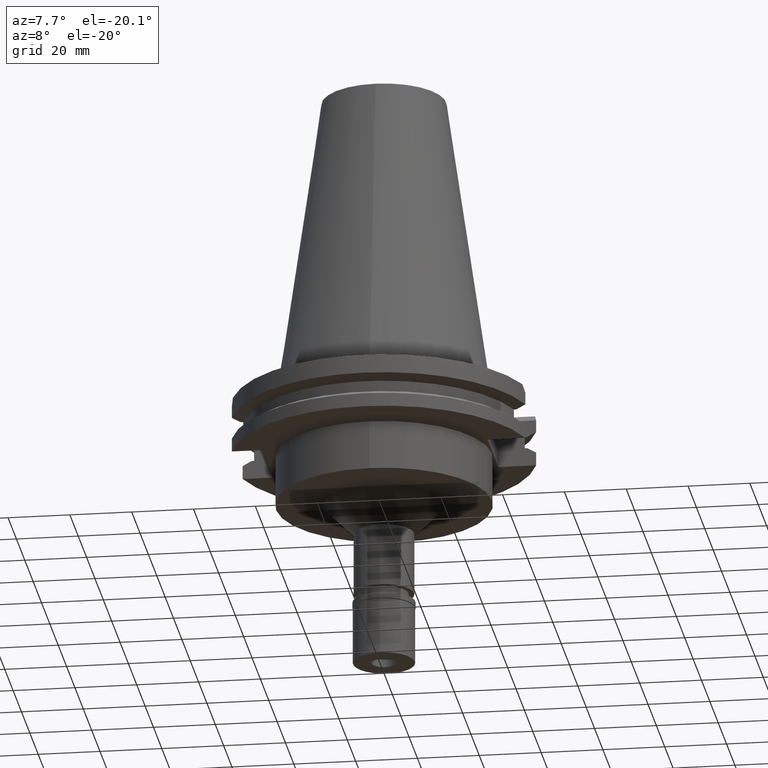
[diagram: clean part render]
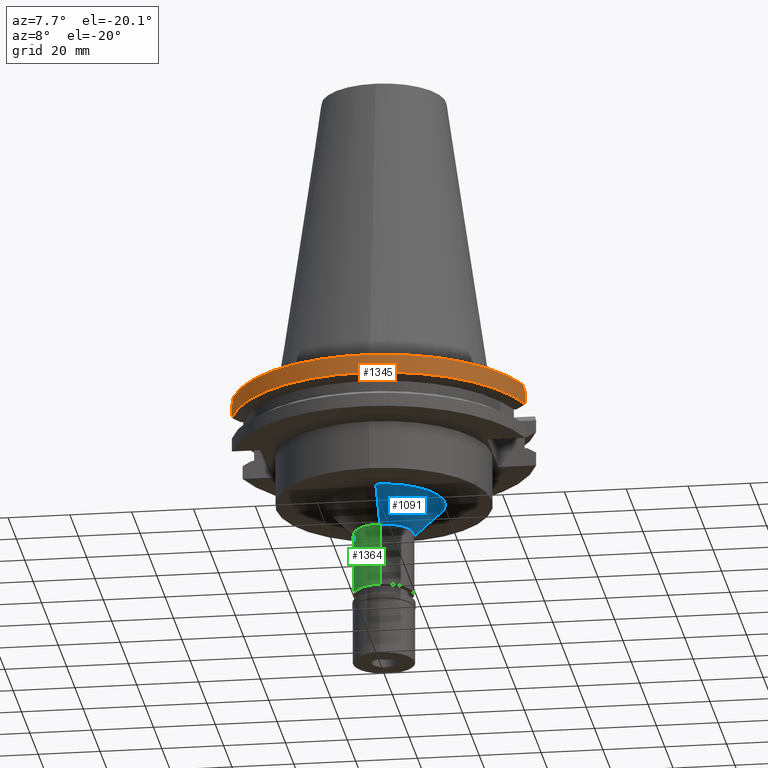
[diagram: same view with three faces highlighted in distinct colors, each labeled with its STEP entity id]
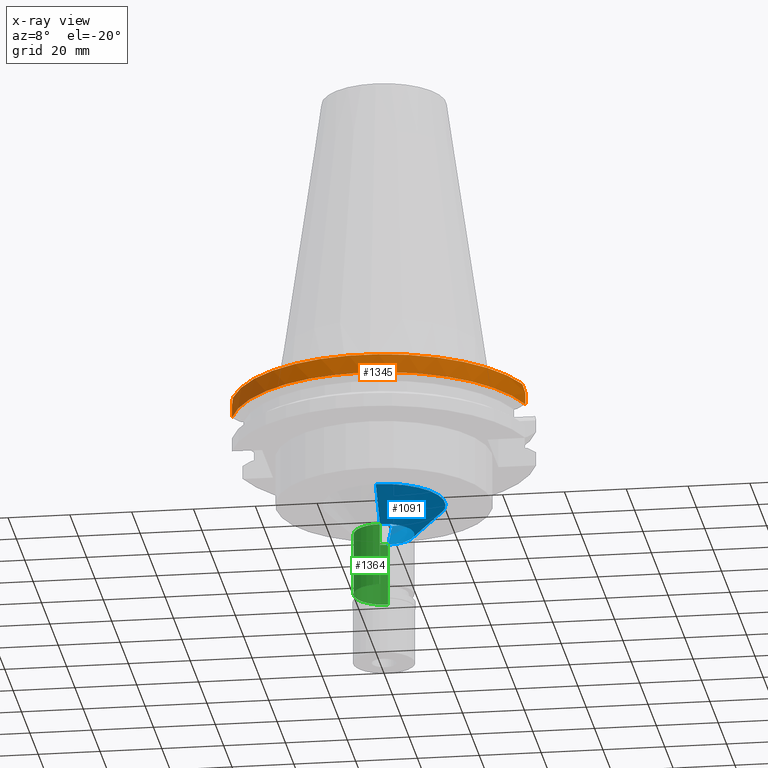
[diagram: x-ray of the same camera — body ghosted, the three highlighted faces saturated]
A machine part, auxiliary view with three faces highlighted in distinct colors.
The next image is the same camera in x-ray (body ghosted, the three faces saturated) — at least one of them is partly hidden behind the body in this view.
Their STEP definitions:

[orange] entity #1345 — the highlighted cylindrical surface (partial cylindrical patch) has radius 49.2125 mm, axis along (0, 0, -1).
#63 = EDGE_LOOP ( 'NONE', ( #402, #559, #3155, #2840, #1658, #2189 ) ) ;
#151 = CARTESIAN_POINT ( 'NONE',  ( 47.47671146204000081, -12.95500000000000007, -3.700000000000000178 ) ) ;
#182 = CIRCLE ( 'NONE', #2048, 49.21249999999999858 ) ;
#186 = CARTESIAN_POINT ( 'NONE',  ( 0.0000000000000000000, 2.580636967502999935E-14, 110.7250000000000085 ) ) ;
#193 = EDGE_CURVE ( 'NONE', #545, #530, #3212, .T. ) ;
#382 = EDGE_CURVE ( 'NONE', #1837, #530, #2187, .T. ) ;
#402 = ORIENTED_EDGE ( 'NONE', *, *, #767, .F. ) ;
#417 = CARTESIAN_POINT ( 'NONE',  ( 0.0000000000000000000, 1.121722380078999823E-14, -7.601333230925999551 ) ) ;
#475 = VERTEX_POINT ( 'NONE', #2460 ) ;
#530 = VERTEX_POINT ( 'NONE', #3280 ) ;
#545 = VERTEX_POINT ( 'NONE', #3060 ) ;
#559 = ORIENTED_EDGE ( 'NONE', *, *, #193, .T. ) ;
#572 = CARTESIAN_POINT ( 'NONE',  ( 47.47671146204000081, -12.95500000000000007, -3.700000000000000178 ) ) ;
#749 = CARTESIAN_POINT ( 'NONE',  ( -47.27588310256999904, -13.69098379592999848, -2.964016204073000260 ) ) ;
#767 = EDGE_CURVE ( 'NONE', #545, #475, #1583, .T. ) ;
#780 = DIRECTION ( 'NONE',  ( -0.9647287063660957562, -0.2632461264922989486, 0.0000000000000000000 ) ) ;
#1103 = VECTOR ( 'NONE', #2940, 1000.000000000000000 ) ;
#1115 = CARTESIAN_POINT ( 'NONE',  ( 47.47671146204000081, -12.95500000000000007, -3.700000000000000178 ) ) ;
#1284 = CARTESIAN_POINT ( 'NONE',  ( -47.47671146204000081, -12.95500000000000007, -3.699999999999000089 ) ) ;
#1301 = CARTESIAN_POINT ( 'NONE',  ( 47.05739607796999735, -14.42433483211999956, -2.230665167879999800 ) ) ;
#1345 = ADVANCED_FACE ( 'NONE', ( #2975 ), #1941, .T. ) ;
#1383 = CARTESIAN_POINT ( 'NONE',  ( 46.82089417396999664, -15.15499999999999936, -1.500000000000000000 ) ) ;
#1413 = B_SPLINE_CURVE_WITH_KNOTS ( 'NONE', 3,
 ( #1284, #749, #1748, #2533 ),
 .UNSPECIFIED., .F., .F.,
 ( 4, 4 ),
 ( 0.0000000000000000000, 1.000000000000000000 ),
 .UNSPECIFIED. ) ;
#1467 = DIRECTION ( 'NONE',  ( 0.0000000000000000000, -1.000000000000000000, 0.0000000000000000000 ) ) ;
#1583 = LINE ( 'NONE', #2401, #1795 ) ;
#1658 = ORIENTED_EDGE ( 'NONE', *, *, #2801, .T. ) ;
#1748 = CARTESIAN_POINT ( 'NONE',  ( -47.05739607796999735, -14.42433483211999956, -2.230665167879999800 ) ) ;
#1795 = VECTOR ( 'NONE', #3170, 1000.000000000000000 ) ;
#1837 = VERTEX_POINT ( 'NONE', #1115 ) ;
#1904 = CARTESIAN_POINT ( 'NONE',  ( 0.0000000000000000000, 2.580636967502999935E-14, -1.500000000000000000 ) ) ;
#1941 = CYLINDRICAL_SURFACE ( 'NONE', #2018, 49.21249999999999858 ) ;
#2018 = AXIS2_PLACEMENT_3D ( 'NONE', #186, #2710, #1467 ) ;
#2048 = AXIS2_PLACEMENT_3D ( 'NONE', #1904, #2082, #2373 ) ;
#2082 = DIRECTION ( 'NONE',  ( 0.0000000000000000000, 0.0000000000000000000, -1.000000000000000000 ) ) ;
#2104 = EDGE_CURVE ( 'NONE', #475, #2502, #1413, .T. ) ;
#2173 = CARTESIAN_POINT ( 'NONE',  ( -46.82089417396999664, -15.15499999999999936, -1.500000000000000000 ) ) ;
#2182 = AXIS2_PLACEMENT_3D ( 'NONE', #417, #2579, #780 ) ;
#2187 = LINE ( 'NONE', #151, #1103 ) ;
#2189 = ORIENTED_EDGE ( 'NONE', *, *, #2104, .F. ) ;
#2322 = EDGE_CURVE ( 'NONE', #2441, #1837, #3221, .T. ) ;
#2373 = DIRECTION ( 'NONE',  ( 0.0000000000000000000, -1.000000000000000000, 0.0000000000000000000 ) ) ;
#2384 = CARTESIAN_POINT ( 'NONE',  ( 47.27588310256999904, -13.69098379592999848, -2.964016204073000260 ) ) ;
#2401 = CARTESIAN_POINT ( 'NONE',  ( -47.47671146204000081, -12.95500000000000007, -7.601333230924999462 ) ) ;
#2441 = VERTEX_POINT ( 'NONE', #1383 ) ;
#2460 = CARTESIAN_POINT ( 'NONE',  ( -47.47671146204000081, -12.95500000000000007, -3.699999999999000089 ) ) ;
#2502 = VERTEX_POINT ( 'NONE', #2173 ) ;
#2533 = CARTESIAN_POINT ( 'NONE',  ( -46.82089417396999664, -15.15499999999999936, -1.500000000000000000 ) ) ;
#2579 = DIRECTION ( 'NONE',  ( 0.0000000000000000000, 0.0000000000000000000, 1.000000000000000000 ) ) ;
#2710 = DIRECTION ( 'NONE',  ( 0.0000000000000000000, 0.0000000000000000000, -1.000000000000000000 ) ) ;
#2801 = EDGE_CURVE ( 'NONE', #2441, #2502, #182, .T. ) ;
#2840 = ORIENTED_EDGE ( 'NONE', *, *, #2322, .F. ) ;
#2909 = CARTESIAN_POINT ( 'NONE',  ( 46.82089417396999664, -15.15499999999999936, -1.500000000000000000 ) ) ;
#2940 = DIRECTION ( 'NONE',  ( 2.622645846769000281E-13, -3.323839354412000068E-14, -1.000000000000000000 ) ) ;
#2975 = FACE_OUTER_BOUND ( 'NONE', #63, .T. ) ;
#3060 = CARTESIAN_POINT ( 'NONE',  ( -47.47671146204000081, -12.95500000000000007, -7.601333230924999462 ) ) ;
#3155 = ORIENTED_EDGE ( 'NONE', *, *, #382, .F. ) ;
#3170 = DIRECTION ( 'NONE',  ( 2.640858665149000022E-13, 3.369371400362999696E-14, 1.000000000000000000 ) ) ;
#3212 = CIRCLE ( 'NONE', #2182, 49.21250000000001279 ) ;
#3221 = B_SPLINE_CURVE_WITH_KNOTS ( 'NONE', 3,
 ( #2909, #1301, #2384, #572 ),
 .UNSPECIFIED., .F., .F.,
 ( 4, 4 ),
 ( 0.0000000000000000000, 1.000000000000000000 ),
 .UNSPECIFIED. ) ;
#3280 = CARTESIAN_POINT ( 'NONE',  ( 47.47671146204000081, -12.95500000000000007, -7.601333230924999462 ) ) ;

[blue] entity #1091 — the highlighted conical surface has half-angle 45 deg.
#30 = AXIS2_PLACEMENT_3D ( 'NONE', #1934, #1168, #899 ) ;
#64 = CIRCLE ( 'NONE', #3126, 19.75000000000000000 ) ;
#84 = LINE ( 'NONE', #2093, #3108 ) ;
#359 = VERTEX_POINT ( 'NONE', #2424 ) ;
#396 = ORIENTED_EDGE ( 'NONE', *, *, #1515, .T. ) ;
#466 = DIRECTION ( 'NONE',  ( 0.0000000000000000000, 0.7071067811865474617, -0.7071067811865474617 ) ) ;
#500 = DIRECTION ( 'NONE',  ( 0.0000000000000000000, 1.000000000000000000, 0.0000000000000000000 ) ) ;
#714 = LINE ( 'NONE', #1736, #813 ) ;
#774 = DIRECTION ( 'NONE',  ( 0.0000000000000000000, 1.000000000000000000, 0.0000000000000000000 ) ) ;
#796 = CARTESIAN_POINT ( 'NONE',  ( 0.0000000000000000000, 19.75000000000000000, -35.00000000000000000 ) ) ;
#813 = VECTOR ( 'NONE', #466, 1000.000000000000114 ) ;
#899 = DIRECTION ( 'NONE',  ( 0.0000000000000000000, 1.000000000000000000, 0.0000000000000000000 ) ) ;
#990 = CARTESIAN_POINT ( 'NONE',  ( 0.0000000000000000000, 0.0000000000000000000, -35.00000000000000000 ) ) ;
#1091 = ADVANCED_FACE ( 'NONE', ( #1916 ), #1805, .T. ) ;
#1097 = DIRECTION ( 'NONE',  ( 0.0000000000000000000, -0.7071067811865474617, -0.7071067811865474617 ) ) ;
#1168 = DIRECTION ( 'NONE',  ( 0.0000000000000000000, 0.0000000000000000000, 1.000000000000000000 ) ) ;
#1263 = ORIENTED_EDGE ( 'NONE', *, *, #2064, .T. ) ;
#1340 = CIRCLE ( 'NONE', #1776, 9.750000000000000000 ) ;
#1444 = EDGE_LOOP ( 'NONE', ( #396, #1263, #2663, #3167 ) ) ;
#1515 = EDGE_CURVE ( 'NONE', #2176, #1878, #64, .T. ) ;
#1695 = EDGE_CURVE ( 'NONE', #359, #2607, #1340, .T. ) ;
#1736 = CARTESIAN_POINT ( 'NONE',  ( 0.0000000000000000000, -19.75000000000000000, -35.00000000000000000 ) ) ;
#1767 = CARTESIAN_POINT ( 'NONE',  ( 0.0000000000000000000, 0.0000000000000000000, -45.00000000000000000 ) ) ;
#1776 = AXIS2_PLACEMENT_3D ( 'NONE', #1767, #2785, #500 ) ;
#1799 = EDGE_CURVE ( 'NONE', #2176, #359, #84, .T. ) ;
#1805 = CONICAL_SURFACE ( 'NONE', #30, 14.75000000000000000, 0.7853981633972997312 ) ;
#1878 = VERTEX_POINT ( 'NONE', #2666 ) ;
#1916 = FACE_OUTER_BOUND ( 'NONE', #1444, .T. ) ;
#1934 = CARTESIAN_POINT ( 'NONE',  ( 0.0000000000000000000, 0.0000000000000000000, -40.00000000000000000 ) ) ;
#2064 = EDGE_CURVE ( 'NONE', #1878, #2607, #714, .T. ) ;
#2093 = CARTESIAN_POINT ( 'NONE',  ( 0.0000000000000000000, 19.75000000000000000, -35.00000000000000000 ) ) ;
#2176 = VERTEX_POINT ( 'NONE', #796 ) ;
#2191 = CARTESIAN_POINT ( 'NONE',  ( 0.0000000000000000000, -9.750000000000000000, -45.00000000000000000 ) ) ;
#2424 = CARTESIAN_POINT ( 'NONE',  ( 0.0000000000000000000, 9.750000000000000000, -45.00000000000000000 ) ) ;
#2607 = VERTEX_POINT ( 'NONE', #2191 ) ;
#2663 = ORIENTED_EDGE ( 'NONE', *, *, #1695, .F. ) ;
#2666 = CARTESIAN_POINT ( 'NONE',  ( 0.0000000000000000000, -19.75000000000000000, -35.00000000000000000 ) ) ;
#2785 = DIRECTION ( 'NONE',  ( 0.0000000000000000000, 0.0000000000000000000, -1.000000000000000000 ) ) ;
#3064 = DIRECTION ( 'NONE',  ( 0.0000000000000000000, 0.0000000000000000000, -1.000000000000000000 ) ) ;
#3108 = VECTOR ( 'NONE', #1097, 1000.000000000000114 ) ;
#3126 = AXIS2_PLACEMENT_3D ( 'NONE', #990, #3064, #774 ) ;
#3167 = ORIENTED_EDGE ( 'NONE', *, *, #1799, .F. ) ;

[green] entity #1364 — the highlighted cylindrical surface (edge-blend (fillet) strip) has radius 9.75 mm, axis along (0, 0, -1).
#82 = ORIENTED_EDGE ( 'NONE', *, *, #695, .F. ) ;
#92 = DIRECTION ( 'NONE',  ( 0.0000000000000000000, 1.000000000000000000, 0.0000000000000000000 ) ) ;
#148 = CARTESIAN_POINT ( 'NONE',  ( 0.0000000000000000000, 2.580636967502999935E-14, 110.7250000000000085 ) ) ;
#200 = DIRECTION ( 'NONE',  ( 0.0000000000000000000, 0.0000000000000000000, -1.000000000000000000 ) ) ;
#353 = EDGE_CURVE ( 'NONE', #2118, #3264, #1443, .T. ) ;
#359 = VERTEX_POINT ( 'NONE', #2424 ) ;
#453 = FACE_OUTER_BOUND ( 'NONE', #2858, .T. ) ;
#457 = AXIS2_PLACEMENT_3D ( 'NONE', #3216, #2220, #960 ) ;
#460 = EDGE_CURVE ( 'NONE', #359, #2118, #3205, .T. ) ;
#571 = ORIENTED_EDGE ( 'NONE', *, *, #460, .T. ) ;
#695 = EDGE_CURVE ( 'NONE', #2607, #3264, #2154, .T. ) ;
#960 = DIRECTION ( 'NONE',  ( 0.0000000000000000000, -1.000000000000000000, 0.0000000000000000000 ) ) ;
#1220 = AXIS2_PLACEMENT_3D ( 'NONE', #1856, #2870, #92 ) ;
#1364 = ADVANCED_FACE ( 'NONE', ( #453 ), #2489, .T. ) ;
#1443 = CIRCLE ( 'NONE', #1220, 9.750000000000000000 ) ;
#1486 = EDGE_CURVE ( 'NONE', #2607, #359, #1894, .T. ) ;
#1648 = ORIENTED_EDGE ( 'NONE', *, *, #1486, .T. ) ;
#1651 = VECTOR ( 'NONE', #2153, 1000.000000000000000 ) ;
#1702 = DIRECTION ( 'NONE',  ( 0.0000000000000000000, -1.000000000000000000, 0.0000000000000000000 ) ) ;
#1839 = DIRECTION ( 'NONE',  ( 0.0000000000000000000, 0.0000000000000000000, -1.000000000000000000 ) ) ;
#1856 = CARTESIAN_POINT ( 'NONE',  ( 0.0000000000000000000, 2.580636967502999935E-14, -65.50000000000000000 ) ) ;
#1894 = CIRCLE ( 'NONE', #457, 9.750000000000000000 ) ;
#2118 = VERTEX_POINT ( 'NONE', #2581 ) ;
#2153 = DIRECTION ( 'NONE',  ( 0.0000000000000000000, 0.0000000000000000000, -1.000000000000000000 ) ) ;
#2154 = LINE ( 'NONE', #2426, #2433 ) ;
#2191 = CARTESIAN_POINT ( 'NONE',  ( 0.0000000000000000000, -9.750000000000000000, -45.00000000000000000 ) ) ;
#2220 = DIRECTION ( 'NONE',  ( 0.0000000000000000000, 0.0000000000000000000, -1.000000000000000000 ) ) ;
#2424 = CARTESIAN_POINT ( 'NONE',  ( 0.0000000000000000000, 9.750000000000000000, -45.00000000000000000 ) ) ;
#2426 = CARTESIAN_POINT ( 'NONE',  ( 0.0000000000000000000, -9.750000000000000000, -45.00000000000000000 ) ) ;
#2433 = VECTOR ( 'NONE', #1839, 1000.000000000000000 ) ;
#2489 = CYLINDRICAL_SURFACE ( 'NONE', #2933, 9.750000000000000000 ) ;
#2505 = CARTESIAN_POINT ( 'NONE',  ( 0.0000000000000000000, -9.750000000000000000, -65.50000000000000000 ) ) ;
#2581 = CARTESIAN_POINT ( 'NONE',  ( 0.0000000000000000000, 9.750000000000000000, -65.50000000000000000 ) ) ;
#2607 = VERTEX_POINT ( 'NONE', #2191 ) ;
#2696 = CARTESIAN_POINT ( 'NONE',  ( 0.0000000000000000000, 9.750000000000000000, -45.00000000000000000 ) ) ;
#2858 = EDGE_LOOP ( 'NONE', ( #3281, #82, #1648, #571 ) ) ;
#2870 = DIRECTION ( 'NONE',  ( 0.0000000000000000000, 0.0000000000000000000, 1.000000000000000000 ) ) ;
#2933 = AXIS2_PLACEMENT_3D ( 'NONE', #148, #200, #1702 ) ;
#3205 = LINE ( 'NONE', #2696, #1651 ) ;
#3216 = CARTESIAN_POINT ( 'NONE',  ( 0.0000000000000000000, 0.0000000000000000000, -45.00000000000000000 ) ) ;
#3264 = VERTEX_POINT ( 'NONE', #2505 ) ;
#3281 = ORIENTED_EDGE ( 'NONE', *, *, #353, .T. ) ;